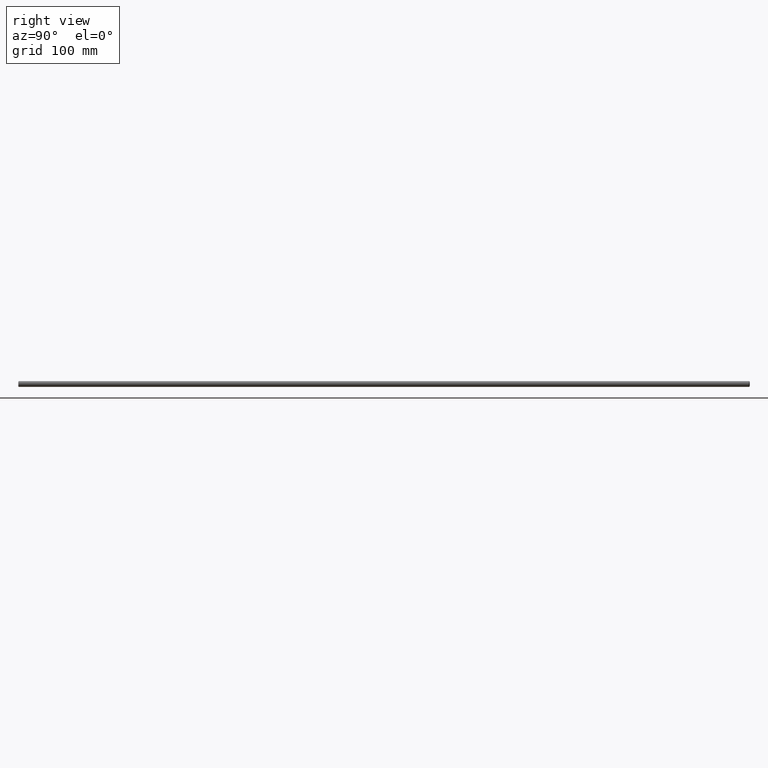
[diagram: clean part render]
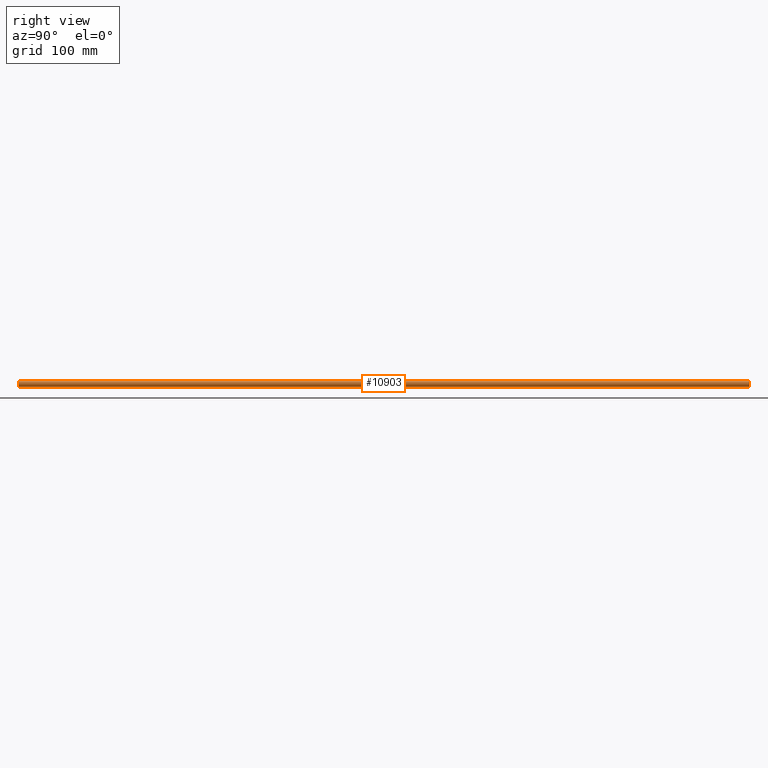
[diagram: same view with one face highlighted and labeled with its STEP entity id]
A machine part, right view. The second image highlights one B-rep face of the part: STEP entity #10903.
In plain terms, the highlighted cylindrical surface (bore or boss wall) has radius 4 mm, axis along (-0, -1, -0).
Its self-contained STEP definition (entity closure, byte-faithful):
#179 = FACE_OUTER_BOUND ( 'NONE', #1470, .T. ) ;
#881 = DIRECTION ( 'NONE',  ( 0.0000000000000000000, -1.000000000000000000, 0.0000000000000000000 ) ) ;
#1350 = FACE_OUTER_BOUND ( 'NONE', #10572, .T. ) ;
#1459 = VERTEX_POINT ( 'NONE', #2383 ) ;
#1470 = EDGE_LOOP ( 'NONE', ( #10741 ) ) ;
#2253 = EDGE_CURVE ( 'NONE', #10541, #10541, #7755, .T. ) ;
#2383 = CARTESIAN_POINT ( 'NONE',  ( 0.0000000000000000000, -499.0000000000001100, 4.000000000000000000 ) ) ;
#3805 = CARTESIAN_POINT ( 'NONE',  ( 0.0000000000000000000, 499.0000000000000000, 4.000000000000000000 ) ) ;
#7269 = AXIS2_PLACEMENT_3D ( 'NONE', #7964, #9114, #8009 ) ;
#7287 = ORIENTED_EDGE ( 'NONE', *, *, #2253, .T. ) ;
#7348 = CIRCLE ( 'NONE', #7269, 4.000000000000000000 ) ;
#7467 = DIRECTION ( 'NONE',  ( -0.0000000000000000000, -1.000000000000000000, -0.0000000000000000000 ) ) ;
#7755 = CIRCLE ( 'NONE', #12420, 4.000000000000000000 ) ;
#7964 = CARTESIAN_POINT ( 'NONE',  ( 0.0000000000000000000, -499.0000000000001100, 0.0000000000000000000 ) ) ;
#8009 = DIRECTION ( 'NONE',  ( 0.0000000000000000000, 0.0000000000000000000, 1.000000000000000000 ) ) ;
#8575 = EDGE_CURVE ( 'NONE', #1459, #1459, #7348, .T. ) ;
#9114 = DIRECTION ( 'NONE',  ( -0.0000000000000000000, 1.000000000000000000, -0.0000000000000000000 ) ) ;
#10541 = VERTEX_POINT ( 'NONE', #3805 ) ;
#10572 = EDGE_LOOP ( 'NONE', ( #7287 ) ) ;
#10714 = CARTESIAN_POINT ( 'NONE',  ( 0.0000000000000000000, 499.0000000000000000, 0.0000000000000000000 ) ) ;
#10741 = ORIENTED_EDGE ( 'NONE', *, *, #8575, .T. ) ;
#10903 = ADVANCED_FACE ( 'NONE', ( #179, #1350 ), #11221, .T. ) ;
#11221 = CYLINDRICAL_SURFACE ( 'NONE', #15644, 4.000000000000000000 ) ;
#12117 = CARTESIAN_POINT ( 'NONE',  ( 0.0000000000000000000, 500.0000000000000000, 0.0000000000000000000 ) ) ;
#12420 = AXIS2_PLACEMENT_3D ( 'NONE', #10714, #881, #14441 ) ;
#13566 = DIRECTION ( 'NONE',  ( 0.0000000000000000000, 0.0000000000000000000, -1.000000000000000000 ) ) ;
#14441 = DIRECTION ( 'NONE',  ( 0.0000000000000000000, 0.0000000000000000000, 1.000000000000000000 ) ) ;
#15644 = AXIS2_PLACEMENT_3D ( 'NONE', #12117, #7467, #13566 ) ;